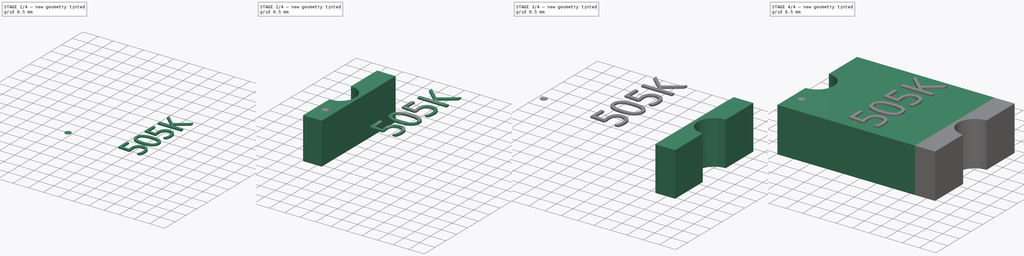
[diagram: build sequence overview — one tinted view per stage of 4, left to right]
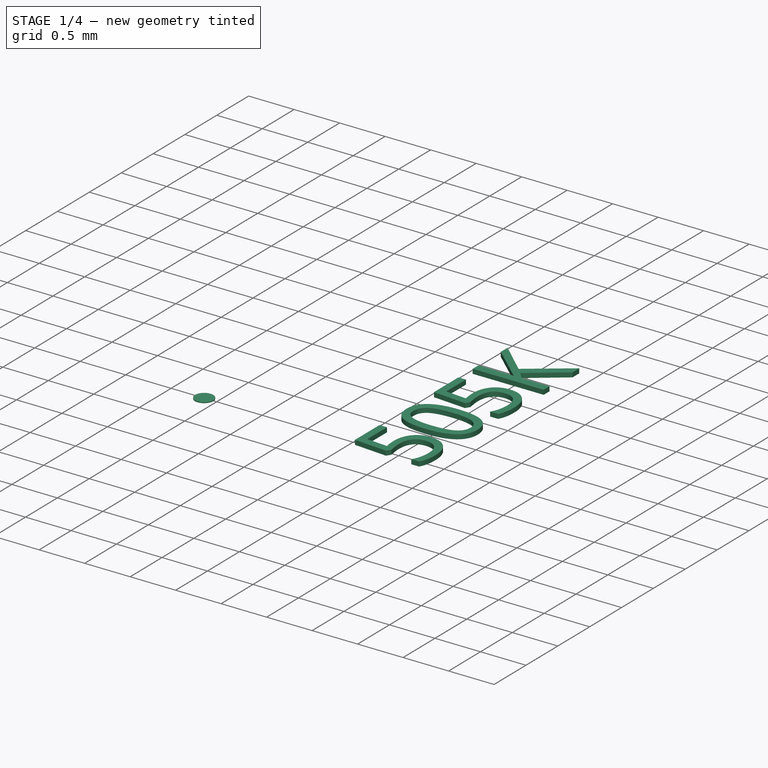
[diagram: stage 1 of 4 — iso view after this stage's code; geometry added in this stage tinted green]
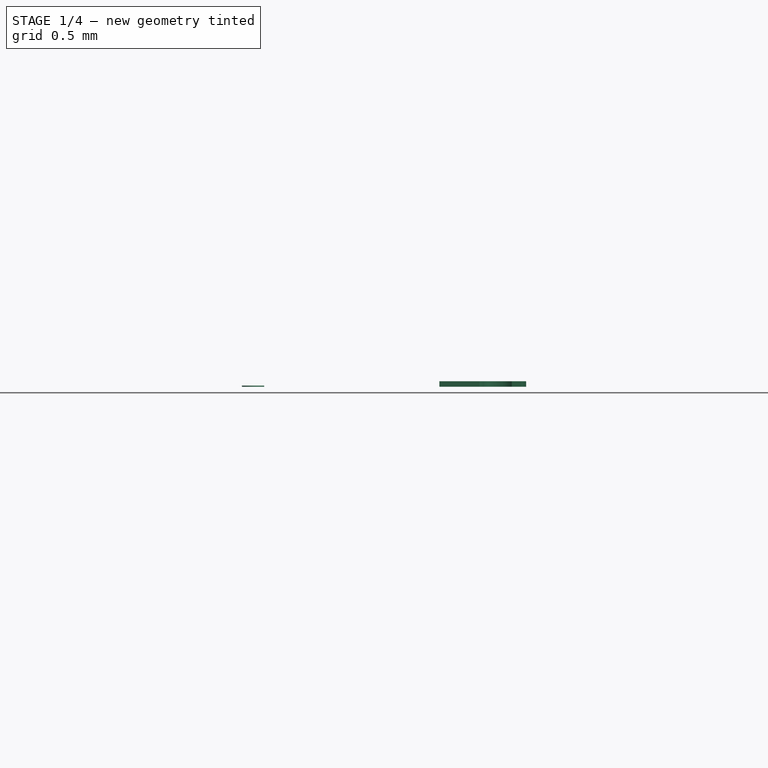
[diagram: stage 1 of 4 — front view after this stage's code; geometry added in this stage tinted green]
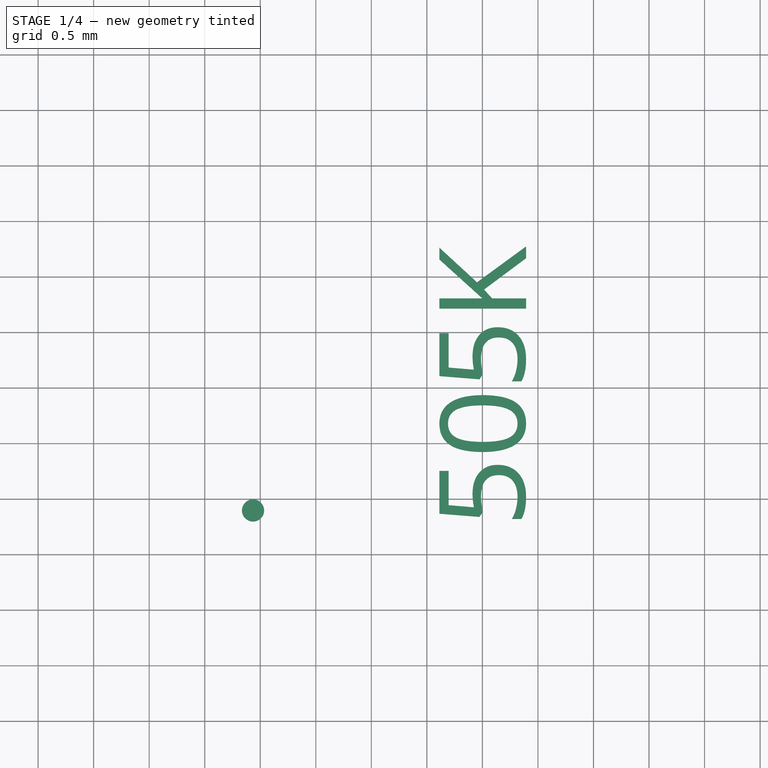
[diagram: stage 1 of 4 — top view after this stage's code; geometry added in this stage tinted green]
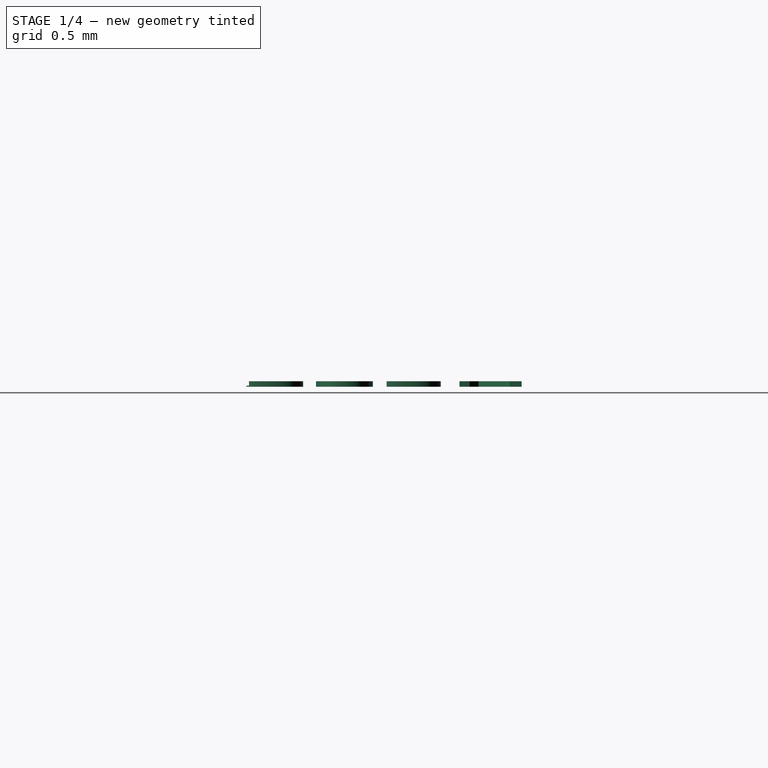
[diagram: stage 1 of 4 — right view after this stage's code; geometry added in this stage tinted green]
FCSTD DOCUMENT  (FreeCAD 0.16R6703 (Git))
Label: f1812
License: All rights reserved
LicenseURL: http://en.wikipedia.org/wiki/All_rights_reserved
objects: Part::FeaturePython×6, App::DocumentObjectGroup×3, Part::Box×1, Sketcher::SketchObject×1, PartDesign::Pad×1, Part::Mirroring×1, Part::Part2DObjectPython×1, Part::Extrusion×1, Part::Cylinder×1
note: 14 computed .brp shape members not serialized (recipe doc carries the construction recipe); baked Part::Feature solids carry a one-line shape summary decoded from their .brp

FEATURE [Part::Part2DObjectPython] ShapeString  # Draft 2D object (typed FeaturePython)
  FontFile = <userpath>/develop/icezum/src-kicad/packages3d/develop/Open_Sans/OpenSans-Regular.ttf
  Placement = pos=(-4.19793,2.22998,0) rot=(0,0,1;1.5708rad)
  Size = 1
  String = 505K
  Tracking = 0
FEATURE [Part::Extrusion] Extrude
  Base = -> ShapeString
  Dir = (0,0,0.05)
  Placement = pos=(4.59098,-3.47961,1.34) rot=(0,0,1;0rad)
  Solid = true
FEATURE [Part::Cylinder] Cylinder  label="mark-src"
  Angle = 360
  Height = 0.01
  Placement = pos=(-2.065,-1.1025,1.34) rot=(0,0,1;0rad)
  Radius = 0.1
FEATURE [App::DocumentObjectGroup] Group  label="src"
  Group = -> [Box,Group001,Group002,Cylinder]
FEATURE [Part::FeaturePython] Clone005  label="mark"  # Draft clone (typed FeaturePython)
  Objects = -> [Cylinder]
  Placement = pos=(-2.065,-1.1025,1.34) rot=(0,0,1;0rad)
  Scale = (1,1,1)
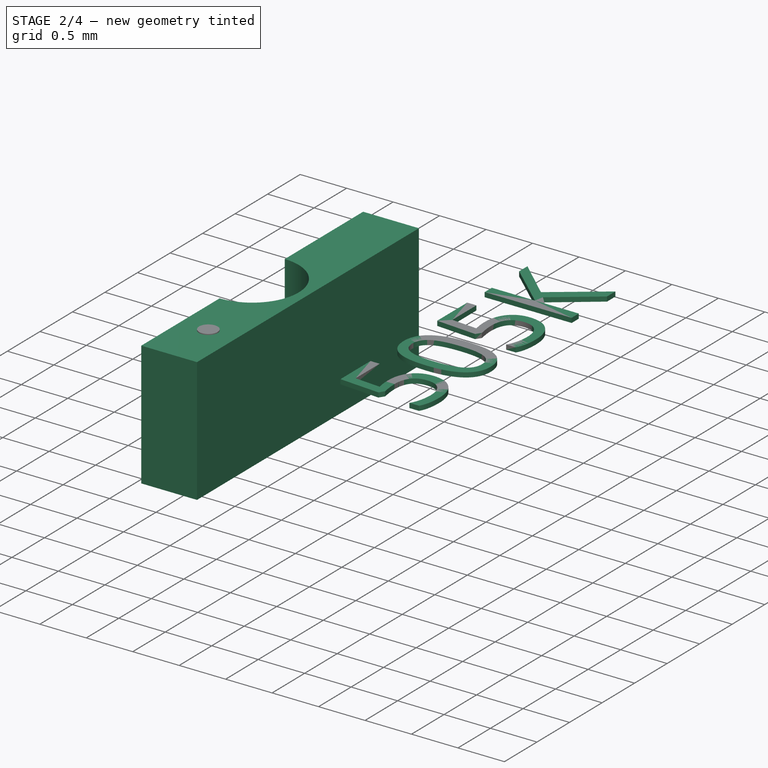
[diagram: stage 2 of 4 — iso view after this stage's code; geometry added in this stage tinted green]
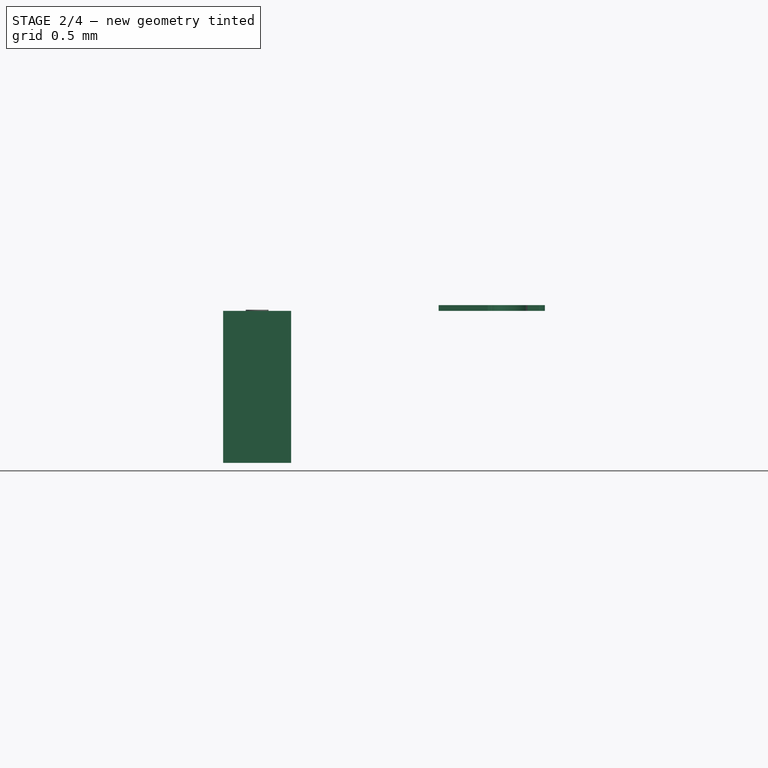
[diagram: stage 2 of 4 — front view after this stage's code; geometry added in this stage tinted green]
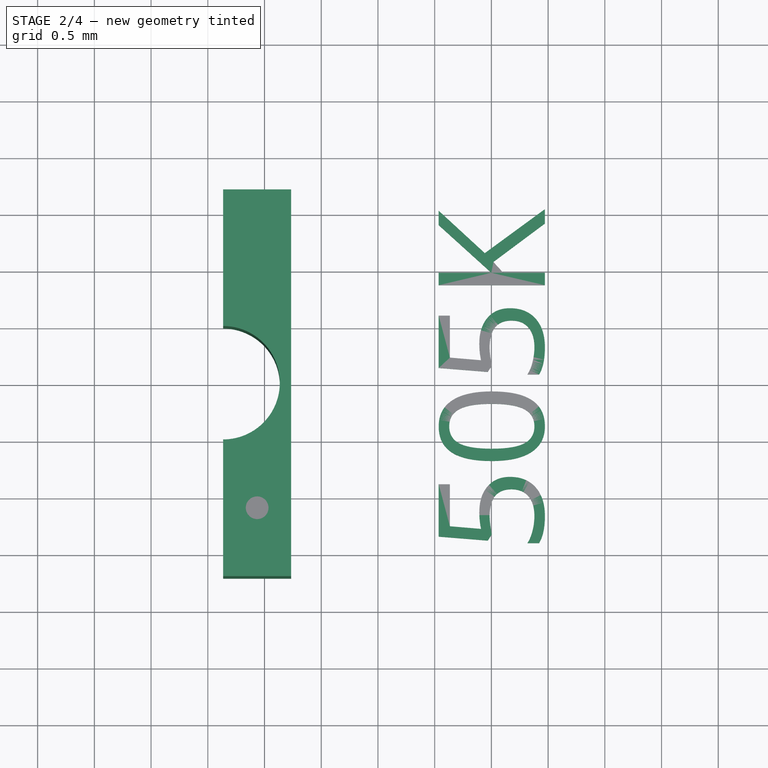
[diagram: stage 2 of 4 — top view after this stage's code; geometry added in this stage tinted green]
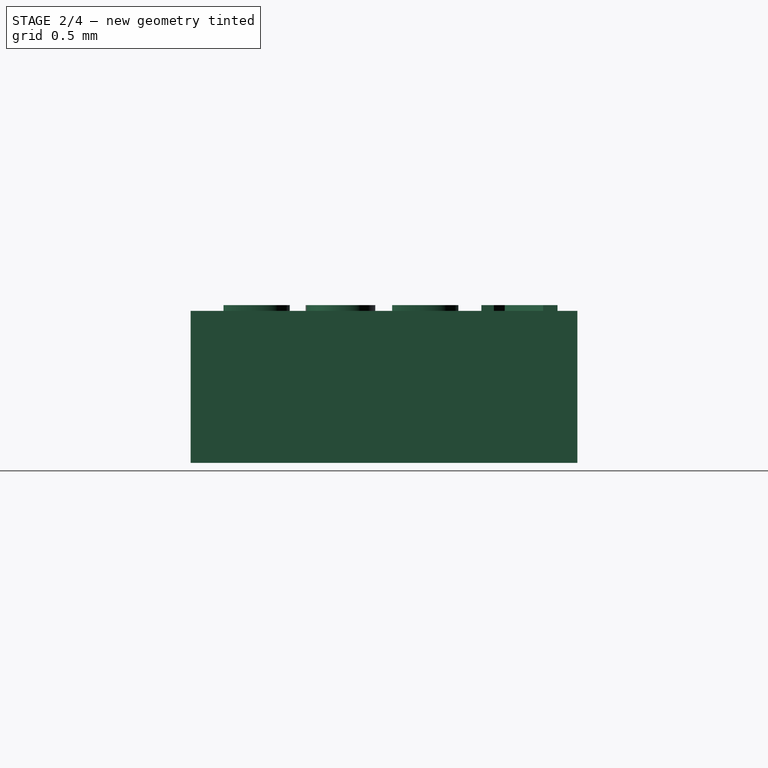
[diagram: stage 2 of 4 — right view after this stage's code; geometry added in this stage tinted green]
FEATURE [Sketcher::SketchObject] Sketch
  sketch-geometry (7):
    g0: LineSegment StartX=0 StartY=0.5 StartZ=0 EndX=0 EndY=1.705 EndZ=0
    g1: LineSegment StartX=0 StartY=1.705 StartZ=0 EndX=0.6 EndY=1.705 EndZ=0
    g2: LineSegment StartX=0.6 StartY=1.705 StartZ=0 EndX=0.6 EndY=-1.705 EndZ=0
    g3: LineSegment StartX=0.6 StartY=-1.705 StartZ=0 EndX=0 EndY=-1.705 EndZ=0
    g4: LineSegment StartX=0 StartY=-1.705 StartZ=0 EndX=0 EndY=-0.5 EndZ=0
    g5: ArcOfCircle CenterX=0 CenterY=0 CenterZ=0 NormalX=0 NormalY=0 NormalZ=1 Radius=0.5 StartAngle=4.71239 EndAngle=7.85398
    g6: LineSegment [constr] StartX=0 StartY=0.5 StartZ=0 EndX=0 EndY=-0.5 EndZ=0
  constraints (21):
    c: Vertical(g0)
    c: Coincident(g0,g1)
    c: Horizontal(g1)
    c: Coincident(g1,g2)
    c: Vertical(g2)
    c: Coincident(g2,g3)
    c: Horizontal(g3)
    c: Coincident(g3,g4)
    c: Vertical(g4)
    c: PointOnObject(g5,g-1)
    c: Coincident(g5,g4)
    c: Coincident(g5,g0)
    c: PointOnObject(g5,g4)
    c: Radius(g5) = 0.5
    c: Vertical(g6)
    c: Coincident(g6,g4)
    c: Coincident(g6,g0)
    c: DistanceX(g1,g1) = 0.6
    c: DistanceY(g2,g2) = 3.41
    c: Symmetric(g0,g3,g-1)
    c: Coincident(g5,g-1)
FEATURE [PartDesign::Pad] Pad
  Length = 1.34
  Length2 = 100
  Sketch = -> Sketch
  Type = 0
FEATURE [Part::FeaturePython] Clone  label="left-pad1"  # Draft clone (typed FeaturePython)
  Objects = -> [Pad]
  Placement = pos=(-2.365,-2.06754e-07,0) rot=(0,0,1;0rad)
  Scale = (1,1,1)
FEATURE [App::DocumentObjectGroup] Group002  label="text-src"
  Group = -> [Extrude]
FEATURE [Part::FeaturePython] Clone004  label="Text"  # Draft clone (typed FeaturePython)
  Objects = -> [Extrude]
  Placement = pos=(4.59098,-3.47961,1.34) rot=(0,0,1;0rad)
  Scale = (1.2,1.2,1)
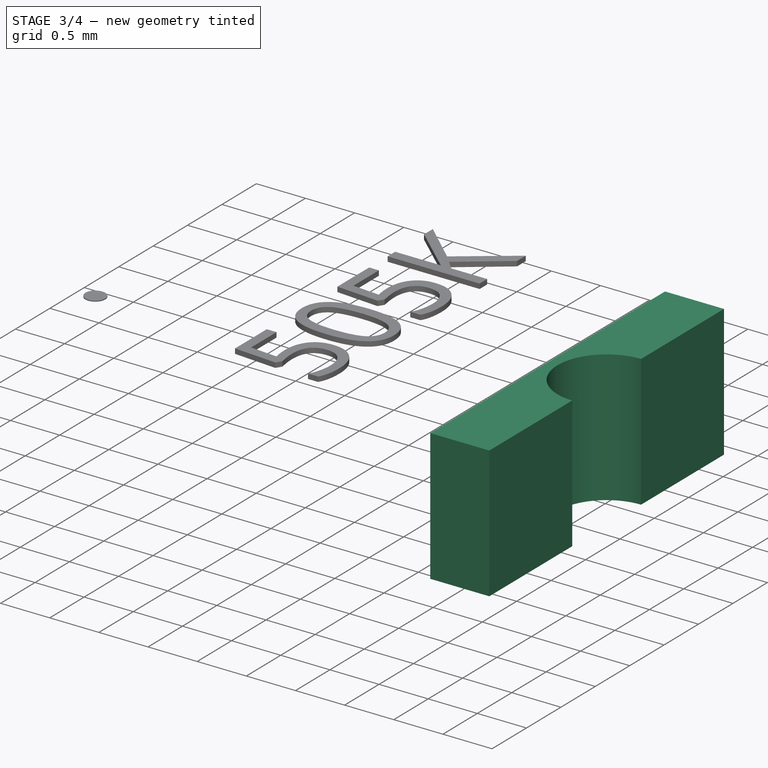
[diagram: stage 3 of 4 — iso view after this stage's code; geometry added in this stage tinted green]
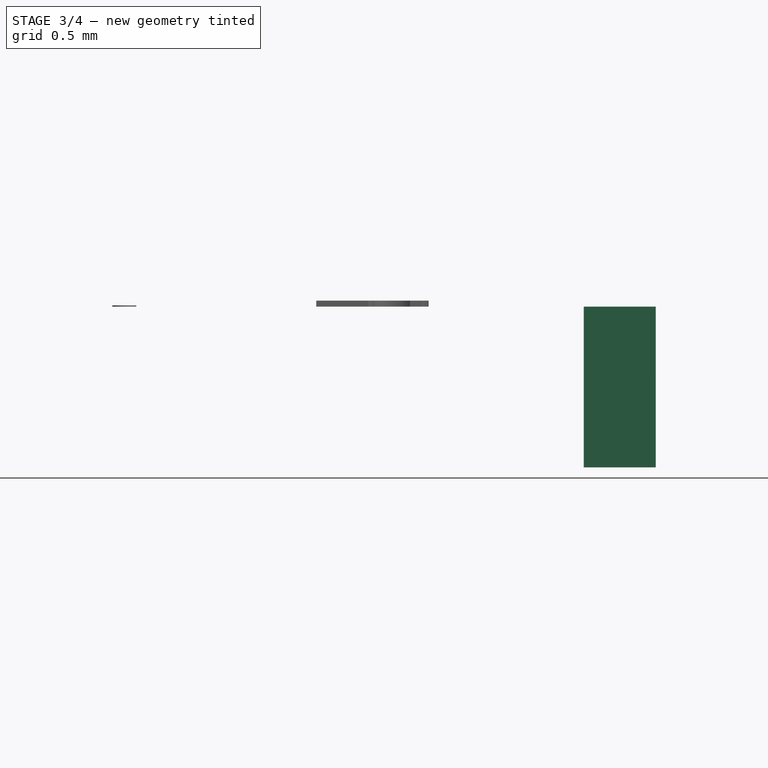
[diagram: stage 3 of 4 — front view after this stage's code; geometry added in this stage tinted green]
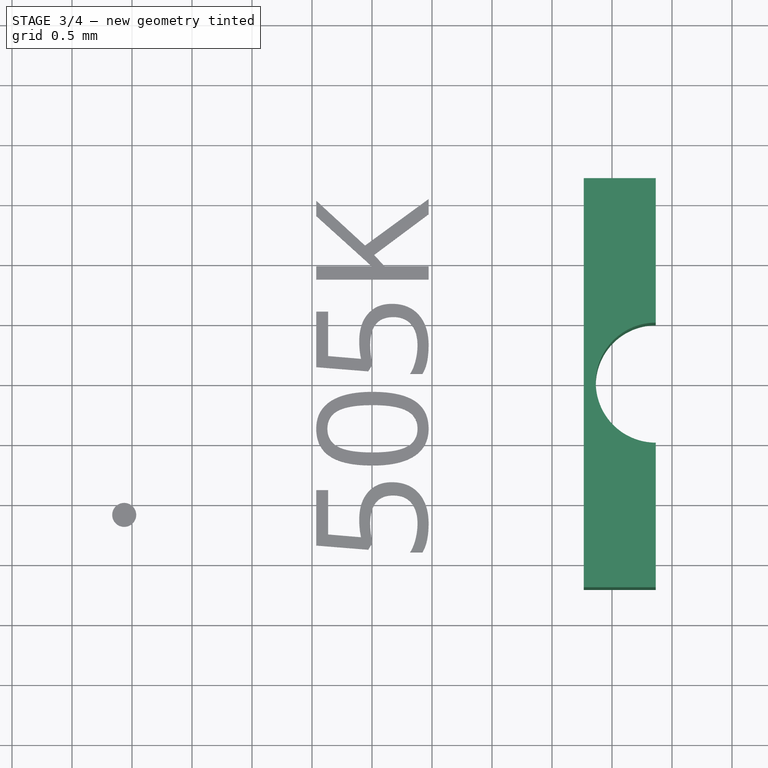
[diagram: stage 3 of 4 — top view after this stage's code; geometry added in this stage tinted green]
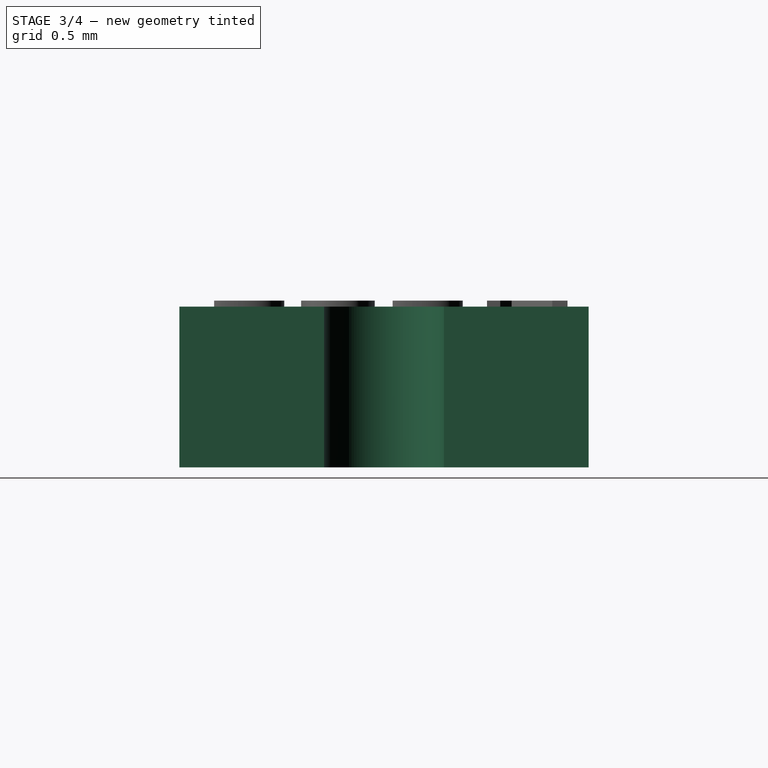
[diagram: stage 3 of 4 — right view after this stage's code; geometry added in this stage tinted green]
FEATURE [Part::Mirroring] Part__Mirroring  label="right-pad"
  Base = (0,0,0)
  Normal = (1,0,0)
  Source = -> Clone
FEATURE [Part::FeaturePython] Clone003  label="right-pad001"  # Draft clone (typed FeaturePython)
  Objects = -> [Part__Mirroring]
  Scale = (1,1,1)
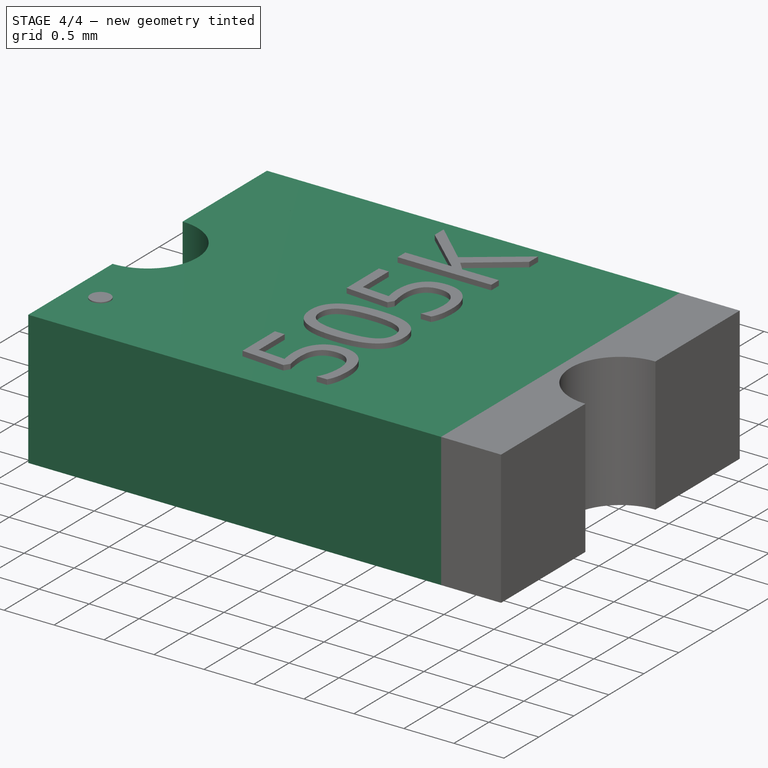
[diagram: stage 4 of 4 — iso view after this stage's code; geometry added in this stage tinted green]
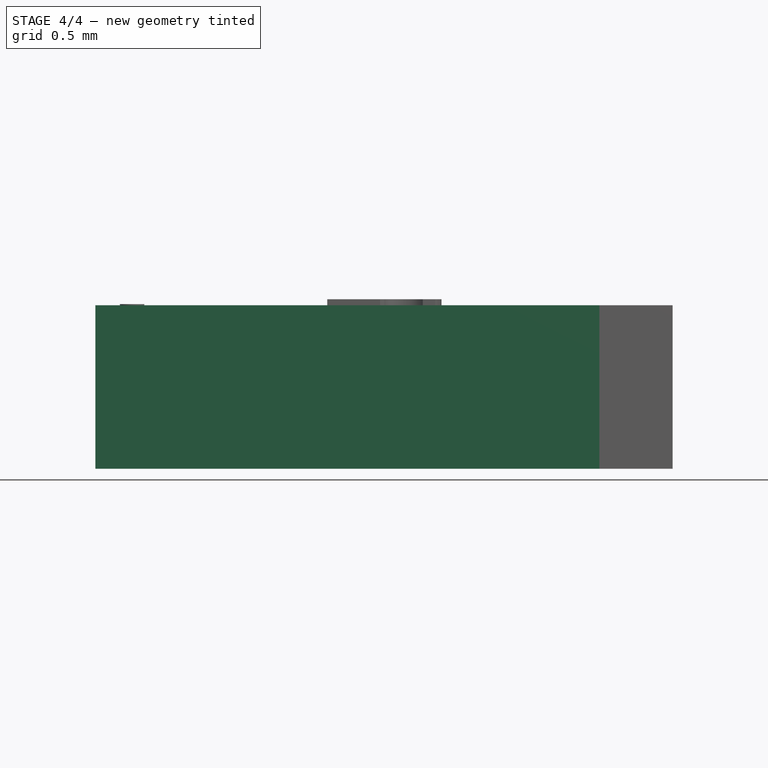
[diagram: stage 4 of 4 — front view after this stage's code; geometry added in this stage tinted green]
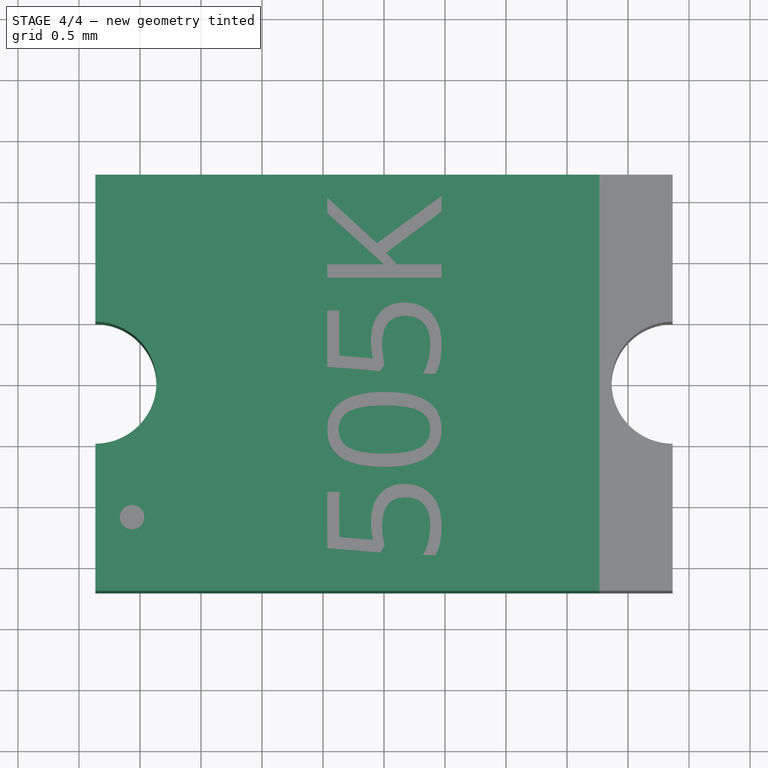
[diagram: stage 4 of 4 — top view after this stage's code; geometry added in this stage tinted green]
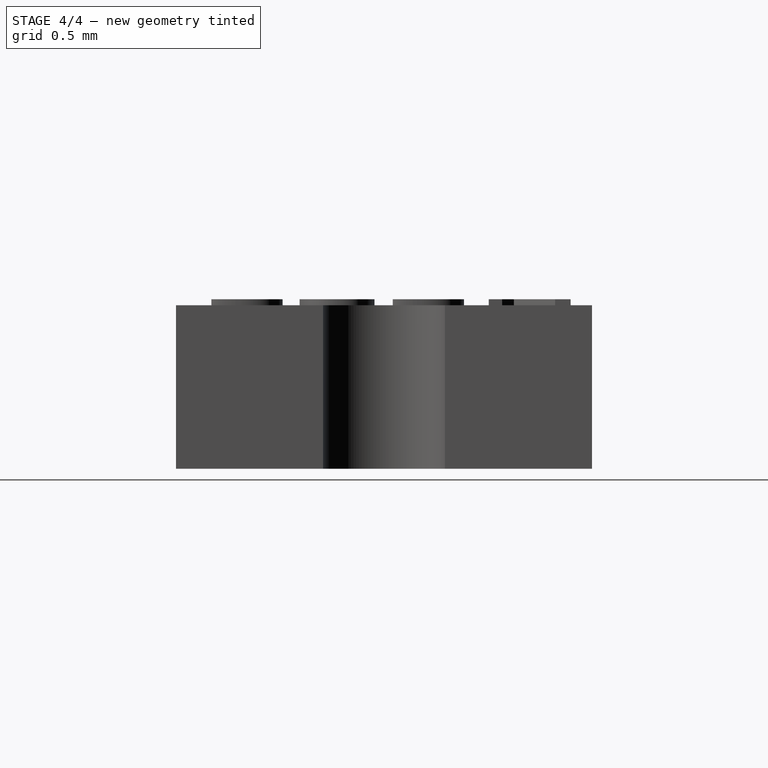
[diagram: stage 4 of 4 — right view after this stage's code; geometry added in this stage tinted green]
FEATURE [Part::Box] Box  label="body-src"
  Height = 1.34
  Length = 3.53
  Placement = pos=(-1.765,-1.705,0) rot=(0,0,1;0rad)
  Width = 3.41
FEATURE [App::DocumentObjectGroup] Group001  label="sides-src"
  Group = -> [Pad,Part__Mirroring]
FEATURE [Part::FeaturePython] Clone001  label="body"  # Draft clone (typed FeaturePython)
  Objects = -> [Box]
  Placement = pos=(-1.765,-1.705,0) rot=(0,0,1;0rad)
  Scale = (1,1,1)
FEATURE [Part::FeaturePython] Clone002  label="left-pad"  # Draft clone (typed FeaturePython)
  Objects = -> [Clone]
  Placement = pos=(-2.365,-2.06754e-07,0) rot=(0,0,1;0rad)
  Scale = (1,1,1)
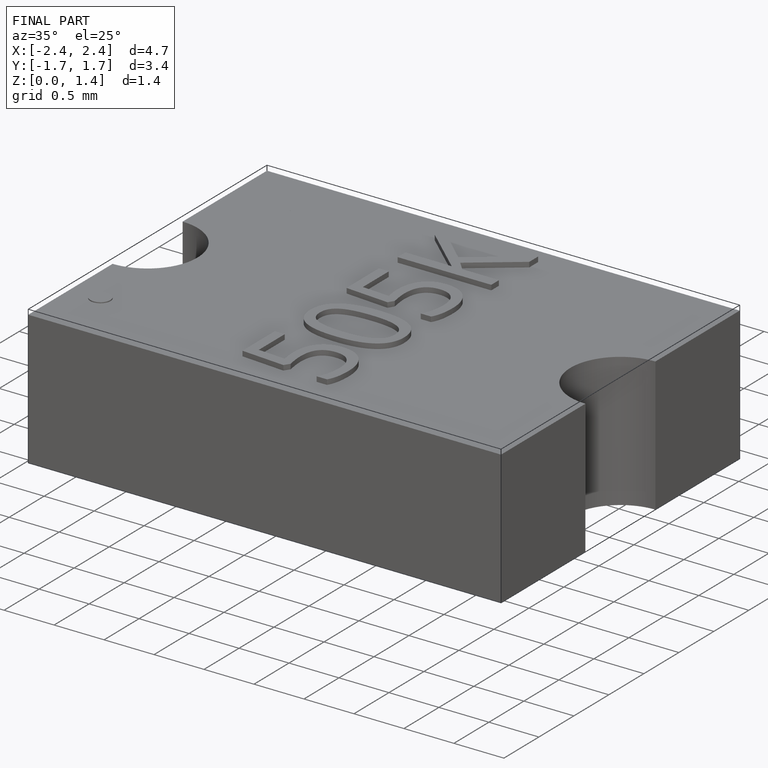
[diagram: finished part — iso view with bounding-box wireframe]
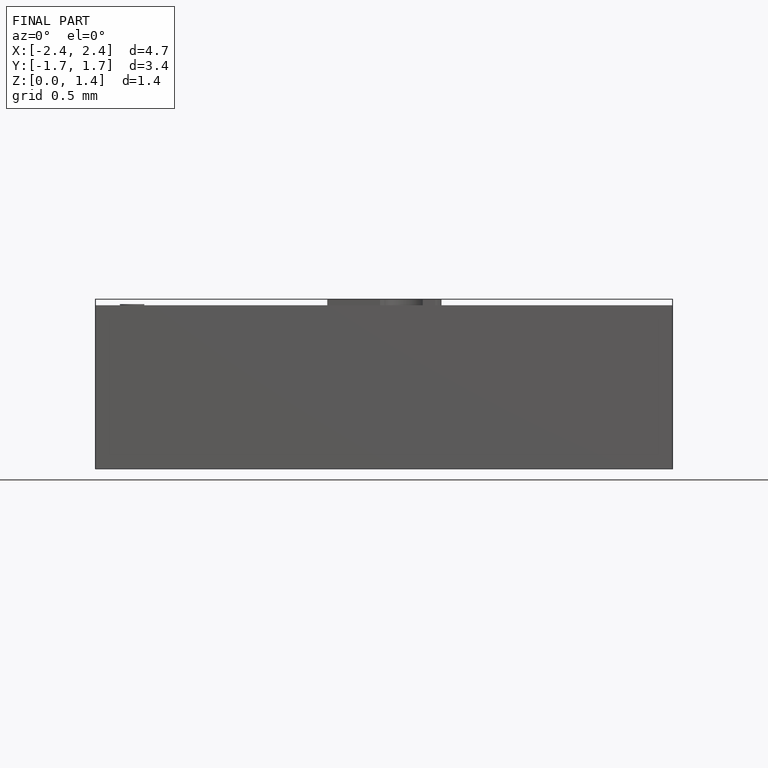
[diagram: finished part — front view with bounding-box wireframe]
